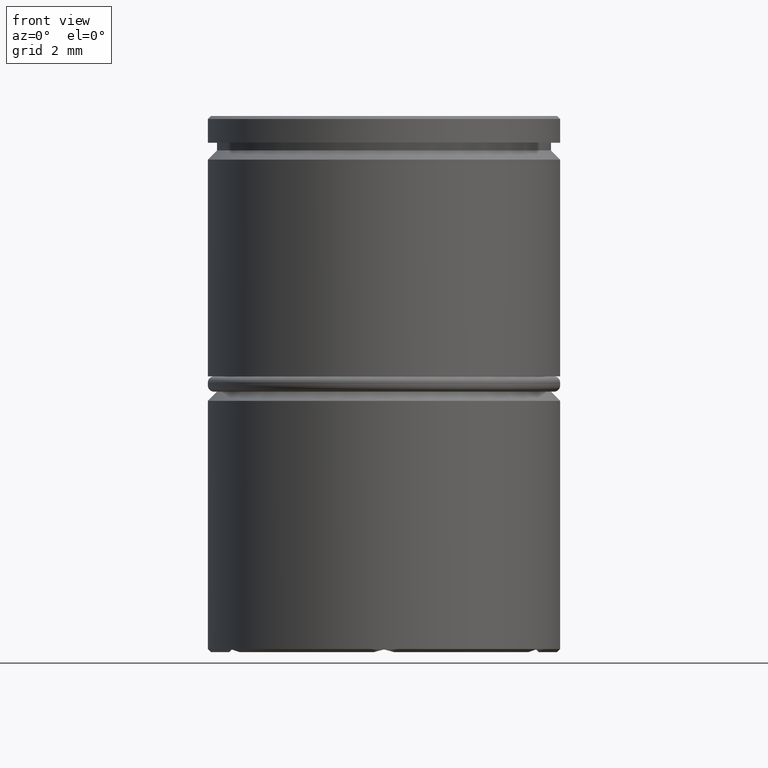
[diagram: clean part render]
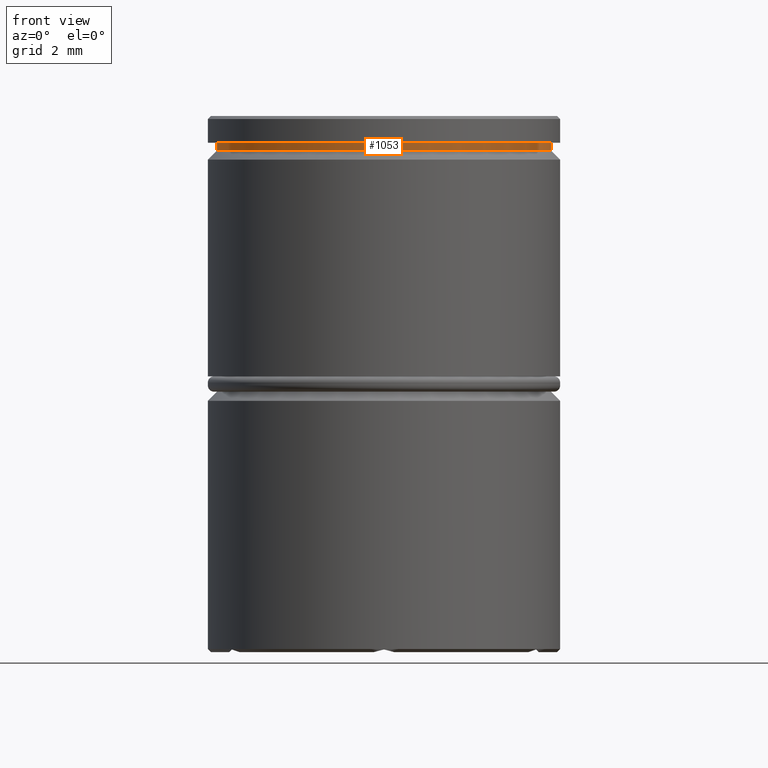
[diagram: same view with one face highlighted and labeled with its STEP entity id]
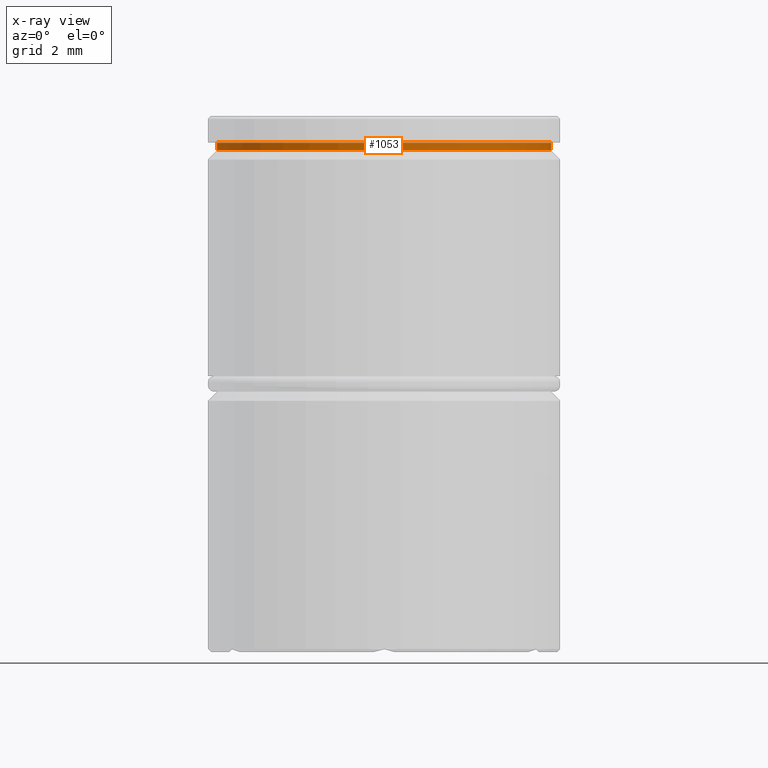
[diagram: x-ray of the same camera — body ghosted, the highlighted face saturated]
A machine part, front view. The second image highlights one B-rep face of the part: STEP entity #1053.
The next image is the same camera in x-ray: the body ghosted, the highlighted face saturated — about 0% of this face is hidden behind the body in this view.
In plain terms, the highlighted cylindrical surface (partial cylindrical patch) has radius 5.45 mm, axis along (-0, -0, 1).
Its self-contained STEP definition (entity closure, byte-faithful):
#101 = VERTEX_POINT ( 'NONE', #639 ) ;
#173 = LINE ( 'NONE', #837, #881 ) ;
#184 = CARTESIAN_POINT ( 'NONE',  ( 5.450000000000000178, 0.000000000000000000, -1.125000000000000222 ) ) ;
#200 = CYLINDRICAL_SURFACE ( 'NONE', #1192, 5.450000000000000178 ) ;
#265 = AXIS2_PLACEMENT_3D ( 'NONE', #804, #275, #693 ) ;
#275 = DIRECTION ( 'NONE',  ( -0.000000000000000000, -0.000000000000000000, 1.000000000000000000 ) ) ;
#296 = FACE_OUTER_BOUND ( 'NONE', #1172, .T. ) ;
#343 = ORIENTED_EDGE ( 'NONE', *, *, #1319, .T. ) ;
#403 = CARTESIAN_POINT ( 'NONE',  ( -5.450000000000000178, 6.674325055353075238E-16, -1.125000000000000222 ) ) ;
#413 = DIRECTION ( 'NONE',  ( -0.000000000000000000, -0.000000000000000000, 1.000000000000000000 ) ) ;
#424 = VERTEX_POINT ( 'NONE', #403 ) ;
#443 = AXIS2_PLACEMENT_3D ( 'NONE', #1063, #463, #665 ) ;
#446 = VERTEX_POINT ( 'NONE', #1148 ) ;
#463 = DIRECTION ( 'NONE',  ( -0.000000000000000000, -0.000000000000000000, 1.000000000000000000 ) ) ;
#500 = DIRECTION ( 'NONE',  ( -0.000000000000000000, -0.000000000000000000, 1.000000000000000000 ) ) ;
#520 = EDGE_CURVE ( 'NONE', #911, #446, #173, .T. ) ;
#582 = ORIENTED_EDGE ( 'NONE', *, *, #689, .F. ) ;
#596 = ORIENTED_EDGE ( 'NONE', *, *, #896, .F. ) ;
#639 = CARTESIAN_POINT ( 'NONE',  ( -5.450000000000000178, 6.674325055353075238E-16, -0.8749999999999998890 ) ) ;
#665 = DIRECTION ( 'NONE',  ( 1.000000000000000000, 0.000000000000000000, 0.000000000000000000 ) ) ;
#689 = EDGE_CURVE ( 'NONE', #101, #446, #928, .T. ) ;
#692 = ORIENTED_EDGE ( 'NONE', *, *, #520, .T. ) ;
#693 = DIRECTION ( 'NONE',  ( 1.000000000000000000, 0.000000000000000000, 0.000000000000000000 ) ) ;
#733 = DIRECTION ( 'NONE',  ( -0.000000000000000000, -0.000000000000000000, 1.000000000000000000 ) ) ;
#804 = CARTESIAN_POINT ( 'NONE',  ( 0.000000000000000000, 0.000000000000000000, -1.125000000000000222 ) ) ;
#837 = CARTESIAN_POINT ( 'NONE',  ( 5.450000000000000178, 0.000000000000000000, 0.000000000000000000 ) ) ;
#881 = VECTOR ( 'NONE', #413, 1000.000000000000000 ) ;
#896 = EDGE_CURVE ( 'NONE', #424, #101, #1227, .T. ) ;
#911 = VERTEX_POINT ( 'NONE', #184 ) ;
#928 = CIRCLE ( 'NONE', #443, 5.450000000000000178 ) ;
#994 = CIRCLE ( 'NONE', #265, 5.450000000000000178 ) ;
#1018 = CARTESIAN_POINT ( 'NONE',  ( 0.000000000000000000, 0.000000000000000000, 0.000000000000000000 ) ) ;
#1029 = DIRECTION ( 'NONE',  ( 1.000000000000000000, 0.000000000000000000, 0.000000000000000000 ) ) ;
#1053 = ADVANCED_FACE ( 'NONE', ( #296 ), #200, .T. ) ;
#1063 = CARTESIAN_POINT ( 'NONE',  ( 0.000000000000000000, 0.000000000000000000, -0.8749999999999998890 ) ) ;
#1076 = VECTOR ( 'NONE', #500, 1000.000000000000000 ) ;
#1117 = CARTESIAN_POINT ( 'NONE',  ( -5.450000000000000178, 6.674325055353075238E-16, 0.000000000000000000 ) ) ;
#1148 = CARTESIAN_POINT ( 'NONE',  ( 5.450000000000000178, 0.000000000000000000, -0.8749999999999998890 ) ) ;
#1172 = EDGE_LOOP ( 'NONE', ( #596, #343, #692, #582 ) ) ;
#1192 = AXIS2_PLACEMENT_3D ( 'NONE', #1018, #733, #1029 ) ;
#1227 = LINE ( 'NONE', #1117, #1076 ) ;
#1319 = EDGE_CURVE ( 'NONE', #424, #911, #994, .T. ) ;